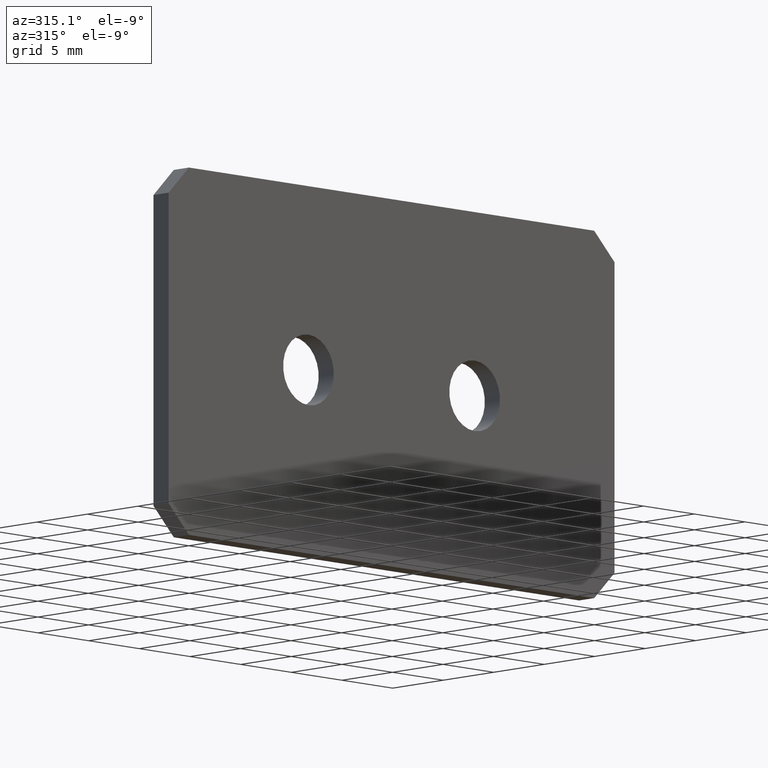
[diagram: clean part render]
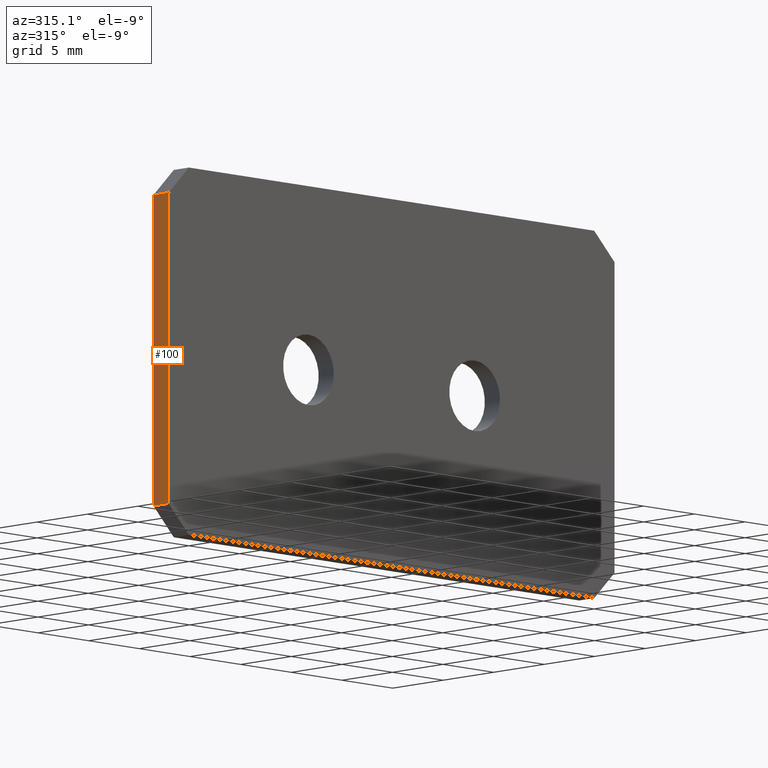
[diagram: same view with one face highlighted and labeled with its STEP entity id]
A machine part, auxiliary view. The second image highlights one B-rep face of the part: STEP entity #100.
In plain terms, the highlighted planar face has unit normal (1, -0, 0).
Its self-contained STEP definition (entity closure, byte-faithful):
#32 = VERTEX_POINT ( 'NONE', #172 ) ;
#62 = VERTEX_POINT ( 'NONE', #281 ) ;
#85 = VERTEX_POINT ( 'NONE', #288 ) ;
#88 = EDGE_CURVE ( 'NONE', #32, #85, #254, .T. ) ;
#96 = EDGE_CURVE ( 'NONE', #62, #32, #323, .T. ) ;
#100 = ADVANCED_FACE ( 'NONE', ( #344 ), #326, .F. ) ;
#101 = EDGE_LOOP ( 'NONE', ( #102, #103, #105, #106 ) ) ;
#102 = ORIENTED_EDGE ( 'NONE', *, *, #88, .T. ) ;
#103 = ORIENTED_EDGE ( 'NONE', *, *, #104, .F. ) ;
#104 = EDGE_CURVE ( 'NONE', #179, #85, #334, .T. ) ;
#105 = ORIENTED_EDGE ( 'NONE', *, *, #227, .F. ) ;
#106 = ORIENTED_EDGE ( 'NONE', *, *, #96, .T. ) ;
#172 = CARTESIAN_POINT ( 'NONE',  ( -22.00000000000000000, 0.0000000000000000000, -11.00000000000000500 ) ) ;
#179 = VERTEX_POINT ( 'NONE', #446 ) ;
#227 = EDGE_CURVE ( 'NONE', #62, #179, #401, .T. ) ;
#254 = LINE ( 'NONE', #305, #304 ) ;
#281 = CARTESIAN_POINT ( 'NONE',  ( -22.00000000000000000, 1.500000000000000000, -11.00000000000000500 ) ) ;
#288 = CARTESIAN_POINT ( 'NONE',  ( -22.00000000000000000, 0.0000000000000000000, 11.00000000000001100 ) ) ;
#303 = DIRECTION ( 'NONE',  ( -0.0000000000000000000, -0.0000000000000000000, 1.000000000000000000 ) ) ;
#304 = VECTOR ( 'NONE', #303, 1000.000000000000000 ) ;
#305 = CARTESIAN_POINT ( 'NONE',  ( -22.00000000000000000, 0.0000000000000000000, 11.00000000000001100 ) ) ;
#320 = DIRECTION ( 'NONE',  ( -0.0000000000000000000, -1.000000000000000000, -0.0000000000000000000 ) ) ;
#321 = VECTOR ( 'NONE', #320, 1000.000000000000000 ) ;
#322 = CARTESIAN_POINT ( 'NONE',  ( -22.00000000000000000, 1.500000000000000000, -11.00000000000000500 ) ) ;
#323 = LINE ( 'NONE', #322, #321 ) ;
#325 = DIRECTION ( 'NONE',  ( 1.000000000000000000, -0.0000000000000000000, 0.0000000000000000000 ) ) ;
#326 = PLANE ( 'NONE',  #328 ) ;
#327 = CARTESIAN_POINT ( 'NONE',  ( -22.00000000000000000, 1.500000000000000000, 11.00000000000001100 ) ) ;
#328 = AXIS2_PLACEMENT_3D ( 'NONE', #327, #325, #345 ) ;
#331 = DIRECTION ( 'NONE',  ( -0.0000000000000000000, -1.000000000000000000, -0.0000000000000000000 ) ) ;
#332 = VECTOR ( 'NONE', #331, 1000.000000000000000 ) ;
#333 = CARTESIAN_POINT ( 'NONE',  ( -22.00000000000000000, 1.500000000000000000, 11.00000000000001100 ) ) ;
#334 = LINE ( 'NONE', #333, #332 ) ;
#344 = FACE_OUTER_BOUND ( 'NONE', #101, .T. ) ;
#345 = DIRECTION ( 'NONE',  ( 0.0000000000000000000, 0.0000000000000000000, -1.000000000000000000 ) ) ;
#398 = DIRECTION ( 'NONE',  ( -0.0000000000000000000, -0.0000000000000000000, 1.000000000000000000 ) ) ;
#399 = VECTOR ( 'NONE', #398, 1000.000000000000000 ) ;
#400 = CARTESIAN_POINT ( 'NONE',  ( -22.00000000000000000, 1.500000000000000000, 11.00000000000001100 ) ) ;
#401 = LINE ( 'NONE', #400, #399 ) ;
#446 = CARTESIAN_POINT ( 'NONE',  ( -22.00000000000000000, 1.500000000000000000, 11.00000000000001100 ) ) ;